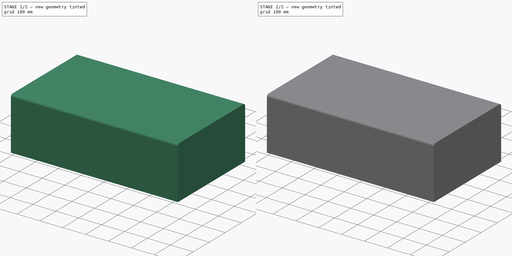
[diagram: build sequence overview — one tinted view per stage of 2, left to right]
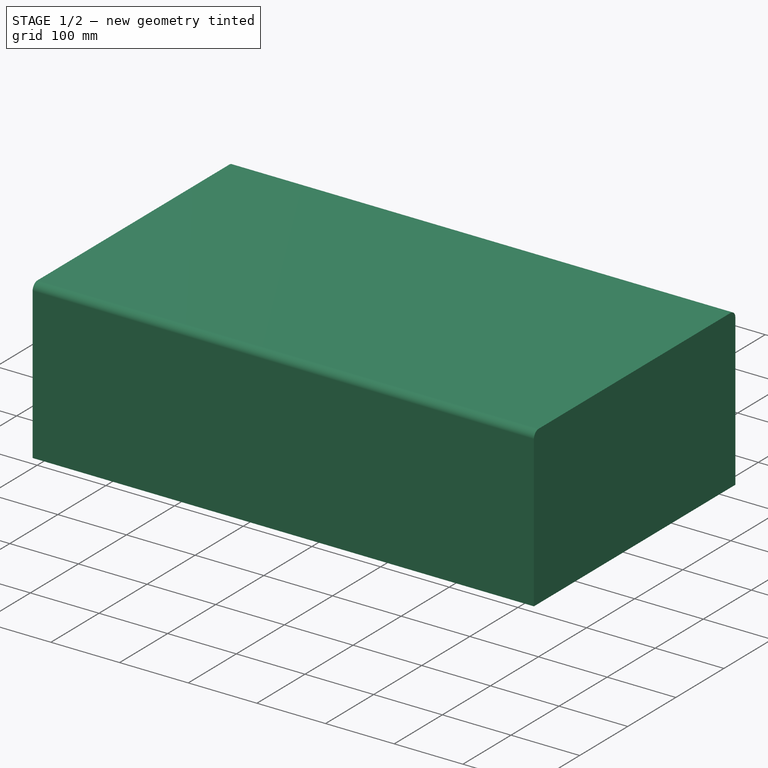
[diagram: stage 1 of 2 — iso view after this stage's code; geometry added in this stage tinted green]
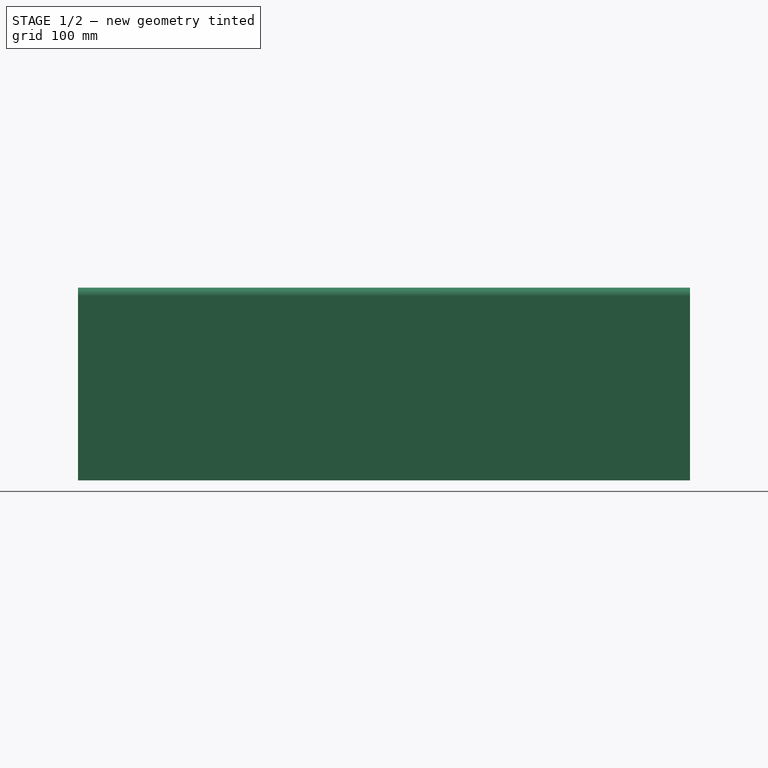
[diagram: stage 1 of 2 — front view after this stage's code; geometry added in this stage tinted green]
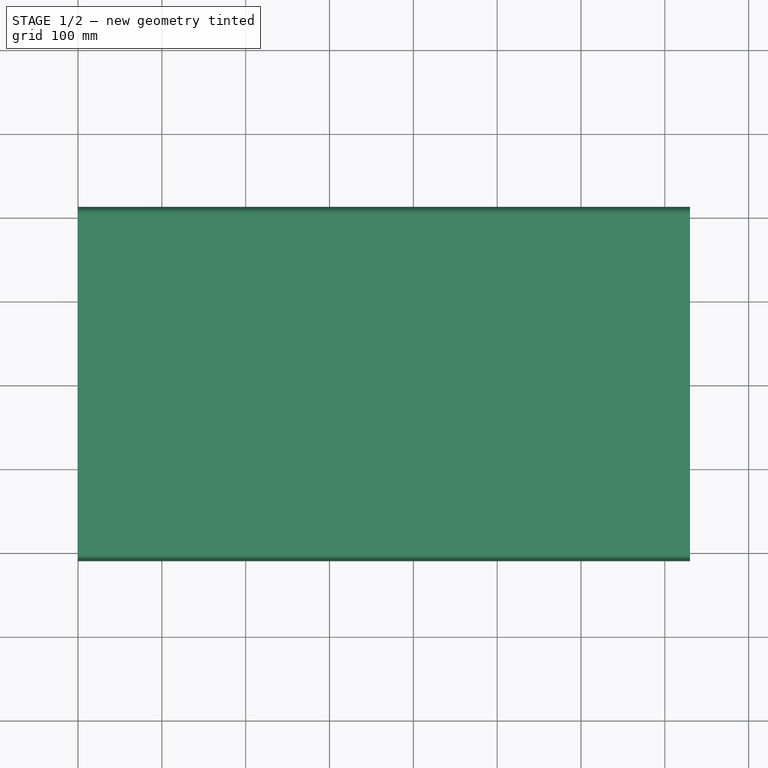
[diagram: stage 1 of 2 — top view after this stage's code; geometry added in this stage tinted green]
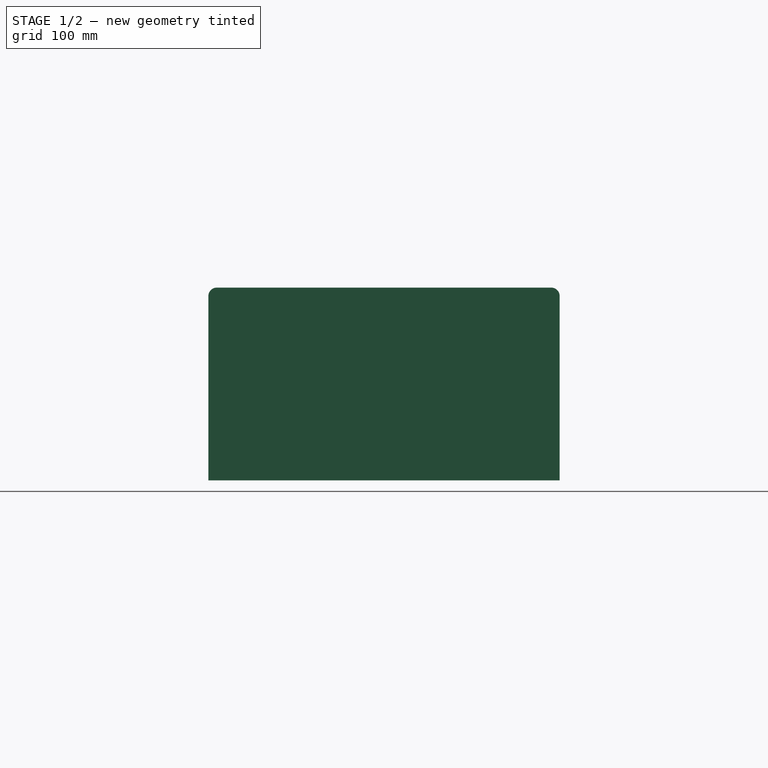
[diagram: stage 1 of 2 — right view after this stage's code; geometry added in this stage tinted green]
FCSTD DOCUMENT  (FreeCAD 1.0R38641 +468 (Git))
Label: pharos
License: All rights reserved
LicenseURL: https://en.wikipedia.org/wiki/All_rights_reserved
objects: PartDesign::CoordinateSystem×3, Sketcher::SketchObject×2, Spreadsheet::Sheet×1, PartDesign::Pad×1, PartDesign::Pocket×1, PartDesign::Body×1, App::Part×1
note: 14 computed .brp shape members not serialized (recipe doc carries the construction recipe); baked Part::Feature solids carry a one-line shape summary decoded from their .brp

FEATURE [Sketcher::SketchObject] Sketch
  ArcFitTolerance = 0
  AttachmentSupport = -> [YZ_Plane]
  FullyConstrained = true
  MakeInternals = false
  MapMode = 5
  Placement = pos=(0,0,0) rot=(0.57735,0.57735,0.57735;2.0944rad)
  expr: Constraints[13] = <<dim>>.B1
  expr: Constraints[14] = <<dim>>.B2
  sketch-geometry (6):
    g0: LineSegment StartX=-209.5 StartY=0 StartZ=0 EndX=209.5 EndY=0 EndZ=0
    g1: LineSegment StartX=209.5 StartY=0 StartZ=0 EndX=209.5 EndY=220 EndZ=0
    g2: LineSegment StartX=199.5 StartY=230 StartZ=0 EndX=-199.5 EndY=230 EndZ=0
    g3: LineSegment StartX=-209.5 StartY=220 StartZ=0 EndX=-209.5 EndY=0 EndZ=0
    g4: ArcOfCircle CenterX=-199.5 CenterY=220 CenterZ=0 NormalX=0 NormalY=0 NormalZ=1 AngleXU=0 Radius=10 StartAngle=1.5708 EndAngle=3.14159
    g5: ArcOfCircle CenterX=199.5 CenterY=220 CenterZ=0 NormalX=0 NormalY=0 NormalZ=1 AngleXU=0 Radius=10 StartAngle=-9e-16 EndAngle=1.5708
  constraints (15):
    c: Coincident(g0,g1)
    c: Coincident(g3,g0)
    c: Horizontal(g0)
    c: Vertical(g1)
    c: Vertical(g3)
    c: PointOnObject(g0,g-1)
    c: Tangent(g2,g4) = -1.5708
    c: Tangent(g3,g4) = -1.5708
    c: Tangent(g2,g5) = -1.5708
    c: Tangent(g1,g5) = -1.5708
    c: Equal(g4,g5)
    c: Radius(g5) = 10
    c: Symmetric(g5,g4,g-2)
    c: DistanceY(g-1,g2) = 230
    c: DistanceX(g0,g0) = 419
FEATURE [Spreadsheet::Sheet] Spreadsheet  label="dim"
  cells = A1='height; B1=230; A2='width; B2=419; A3='length; B3=730; A4='output x; B4=70; A5='output y; B5=70
FEATURE [PartDesign::Pad] Pad
  Direction = (1,0,0)
  Length = 730
  Length2 = 10
  Placement = pos=(0,0,0) rot=(1,1,1;2.0944rad)
  Profile = -> Sketch
  ReferenceAxis = -> Sketch [N_Axis]
  Suppressed = false
  Type = 0
  expr: Length = <<dim>>.B3
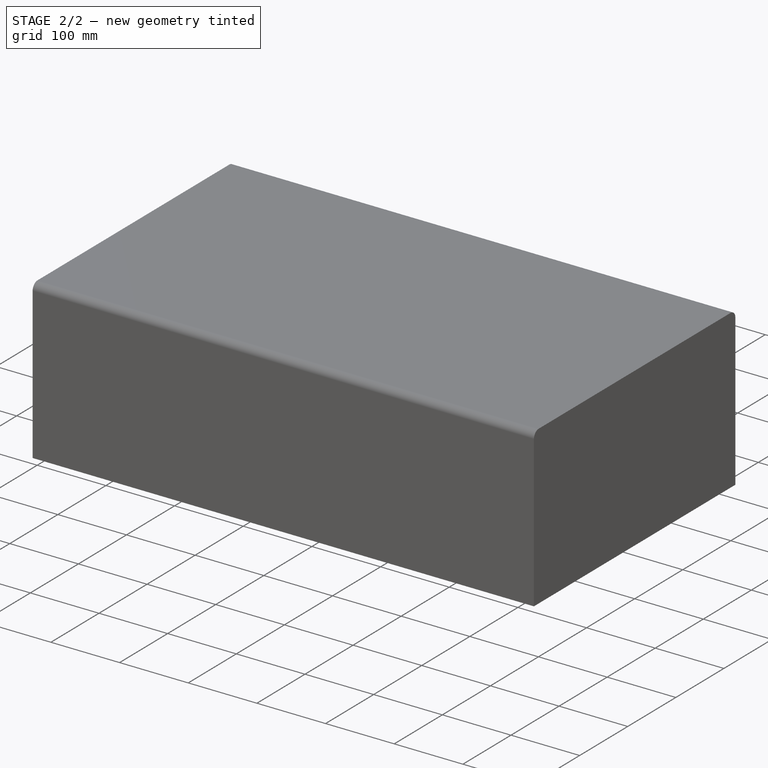
[diagram: stage 2 of 2 — iso view after this stage's code; geometry added in this stage tinted green]
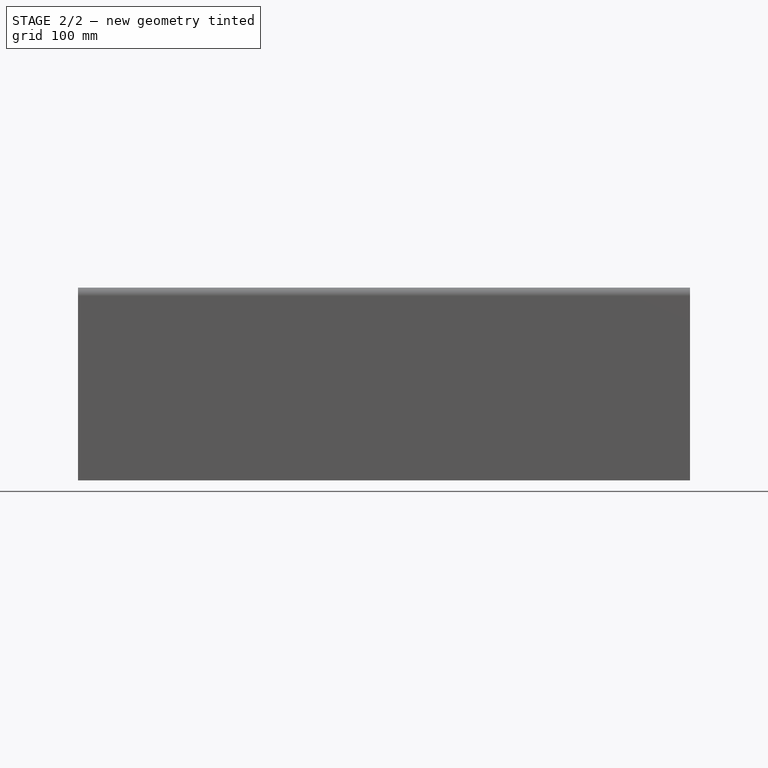
[diagram: stage 2 of 2 — front view after this stage's code; geometry added in this stage tinted green]
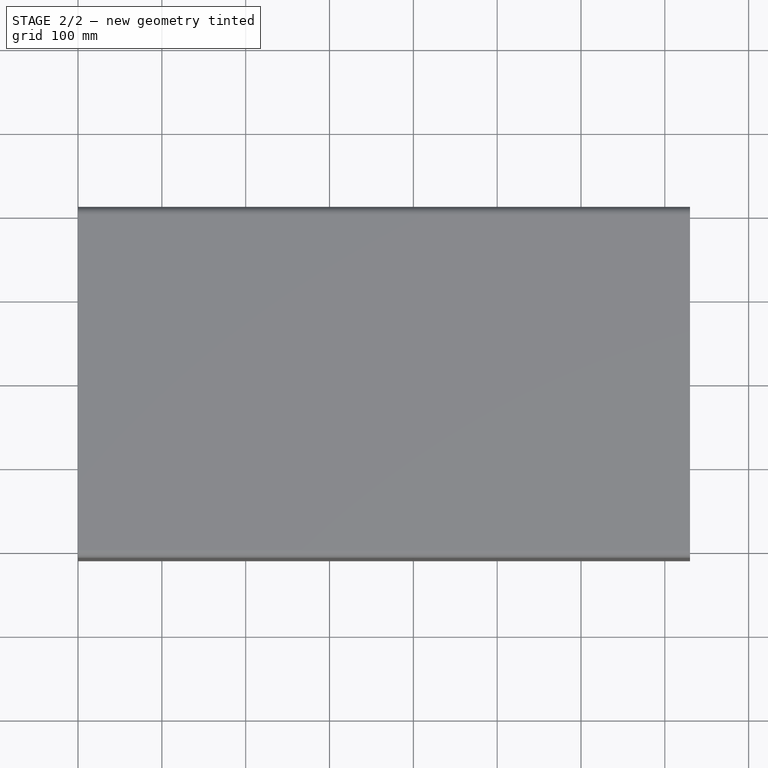
[diagram: stage 2 of 2 — top view after this stage's code; geometry added in this stage tinted green]
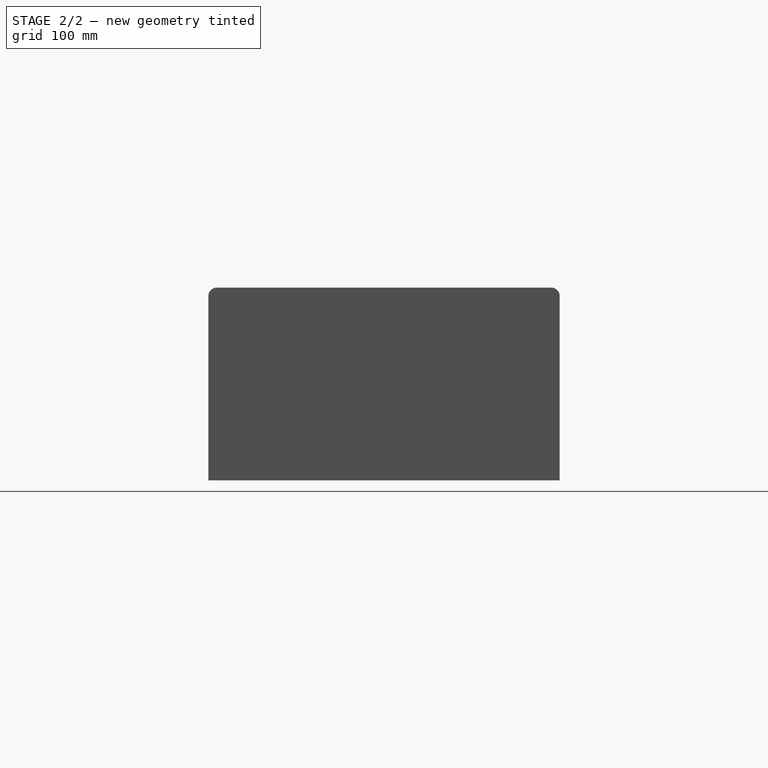
[diagram: stage 2 of 2 — right view after this stage's code; geometry added in this stage tinted green]
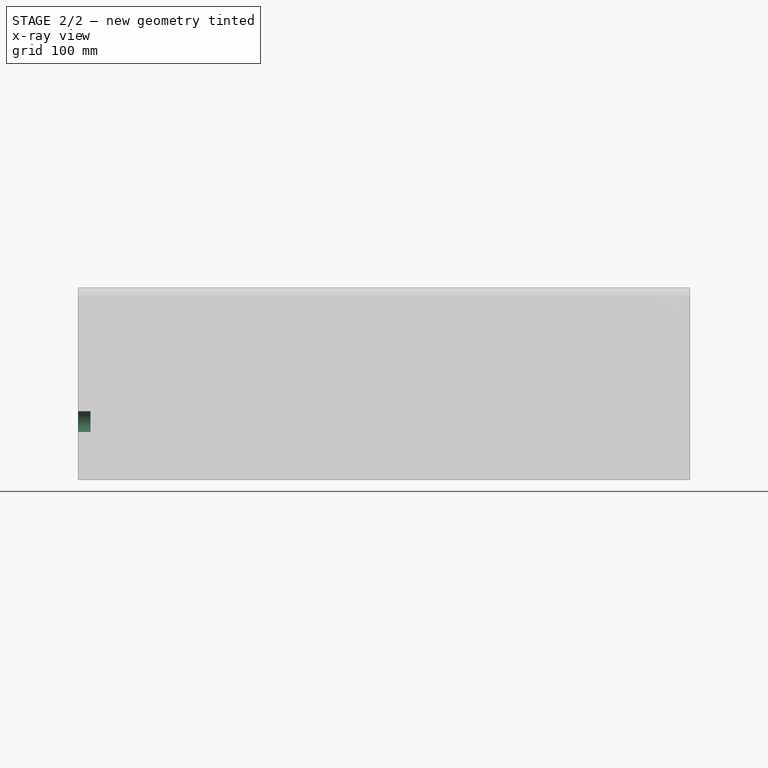
[diagram: stage 2 of 2 — x-ray composite at the front view; earlier geometry ghosted, this stage's added geometry solid]
FEATURE [Sketcher::SketchObject] Sketch001
  ArcFitTolerance = 0
  AttachmentSupport = -> [YZ_Plane]
  FullyConstrained = true
  MakeInternals = false
  MapMode = 5
  Placement = pos=(0,0,0) rot=(0.57735,0.57735,0.57735;2.0944rad)
  expr: Constraints[0] = 25
  expr: Constraints[1] = <<dim>>.B4
  expr: Constraints[2] = <<dim>>.B2 / 2 - <<dim>>.B5
  sketch-geometry (1):
    g0: Circle CenterX=139.5 CenterY=70 CenterZ=0 NormalX=0 NormalY=0 NormalZ=1 AngleXU=0 Radius=12.5
  constraints (3):
    c: Diameter(g0) = 25
    c: DistanceY(g-1,g0) = 70
    c: DistanceX(g-1,g0) = 139.5
FEATURE [PartDesign::Pocket] Pocket
  BaseFeature = -> Pad
  Direction = (-1,0,0)
  Length = 15
  Length2 = 5
  Placement = pos=(0,0,0) rot=(1,1,1;2.0944rad)
  Profile = -> Sketch001
  ReferenceAxis = -> Sketch001 [N_Axis]
  Reversed = true
  Suppressed = false
  Type = 0
FEATURE [PartDesign::Body] Body
  AllowCompound = false
  Group = -> [Sketch,Pad,Sketch001,Pocket]
  Origin = -> Origin
  Tip = -> Pocket
FEATURE [PartDesign::CoordinateSystem] bottom
  AttacherType = Attacher::AttachEngine3D
  AttachmentSupport = -> [Pocket]
  MapMode = 45
  Placement = pos=(365,-8.55e-14,4e-16) rot=(0,0,1;1.5708rad)
FEATURE [PartDesign::CoordinateSystem] front
  AttacherType = Attacher::AttachEngine3D
  AttachmentSupport = -> [Body]
  MapMode = 2
FEATURE [PartDesign::CoordinateSystem] LCS_output
  AttacherType = Attacher::AttachEngine3D
  AttachmentOffset = pos=(0,0,0) rot=(0.707107,0.707107,0;3.14159rad)
  AttachmentSupport = -> [Pocket]
  MapMode = 11
  Placement = pos=(0,139.5,70) rot=(-0.57735,0.57735,0.57735;4.18879rad)
FEATURE [App::Part] Part  label="pharos"
  Group = -> [Body,bottom,front,LCS_output]
  Origin = -> Origin001
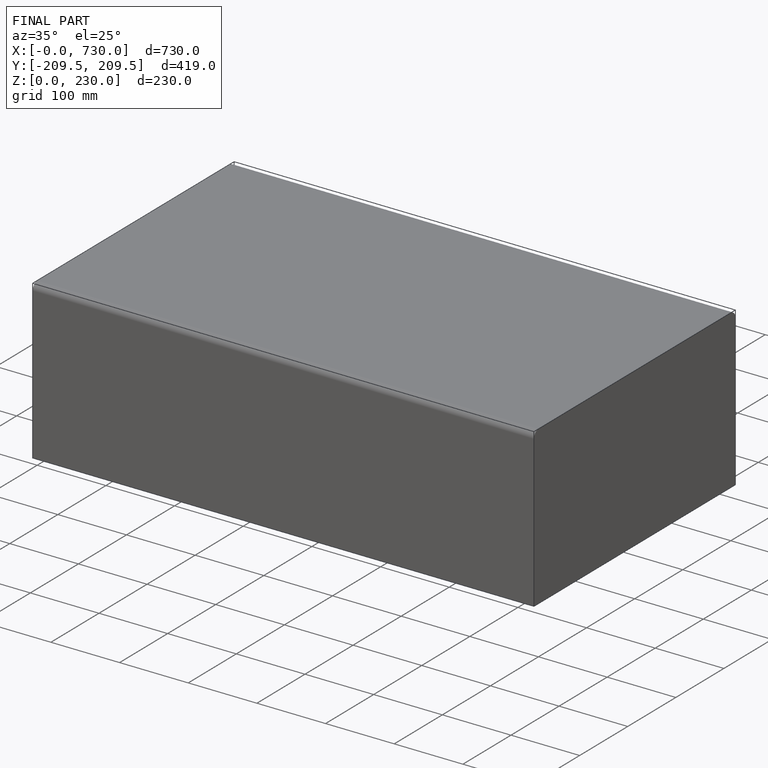
[diagram: finished part — iso view with bounding-box wireframe]
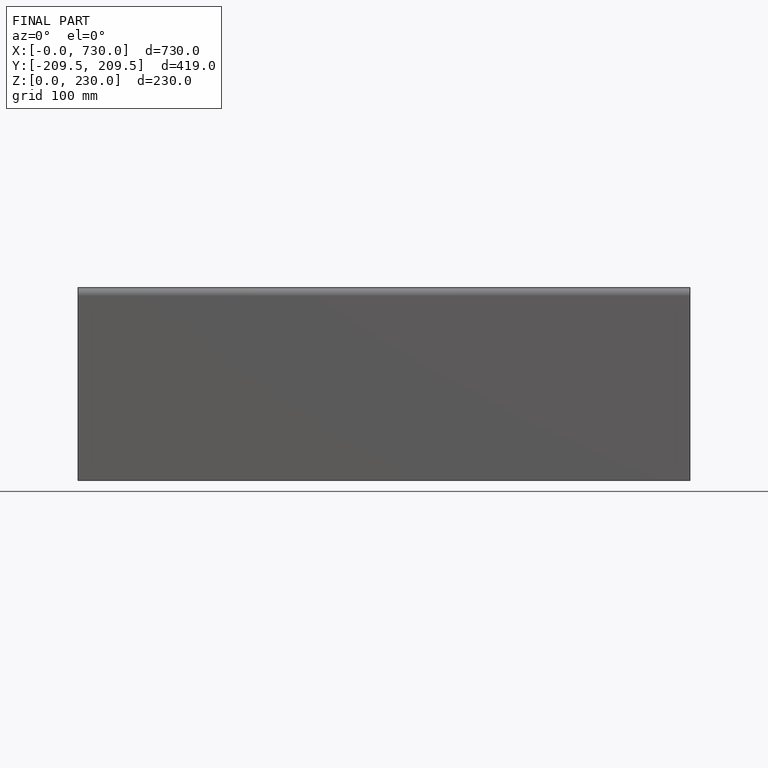
[diagram: finished part — front view with bounding-box wireframe]
